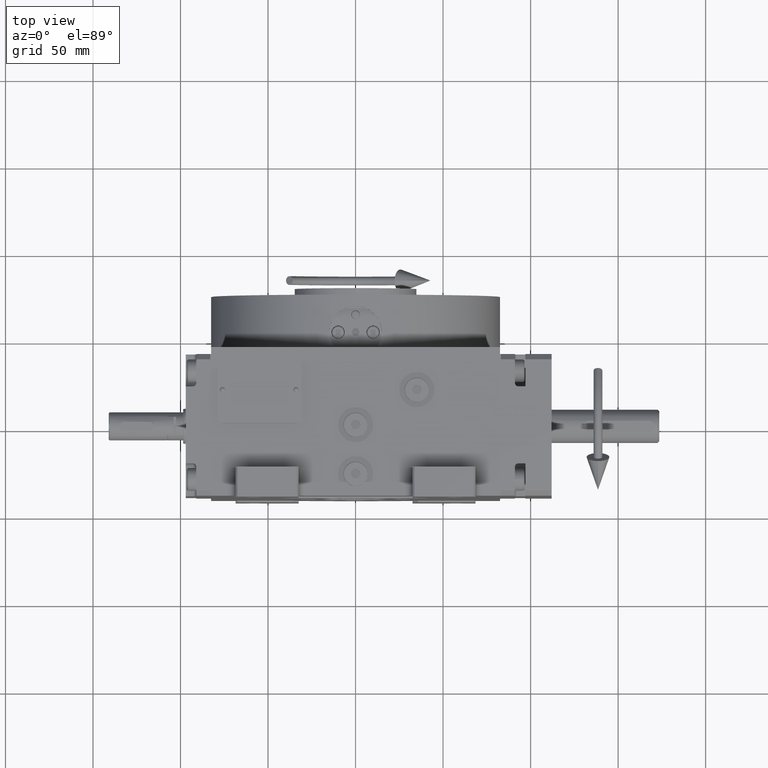
[diagram: clean part render]
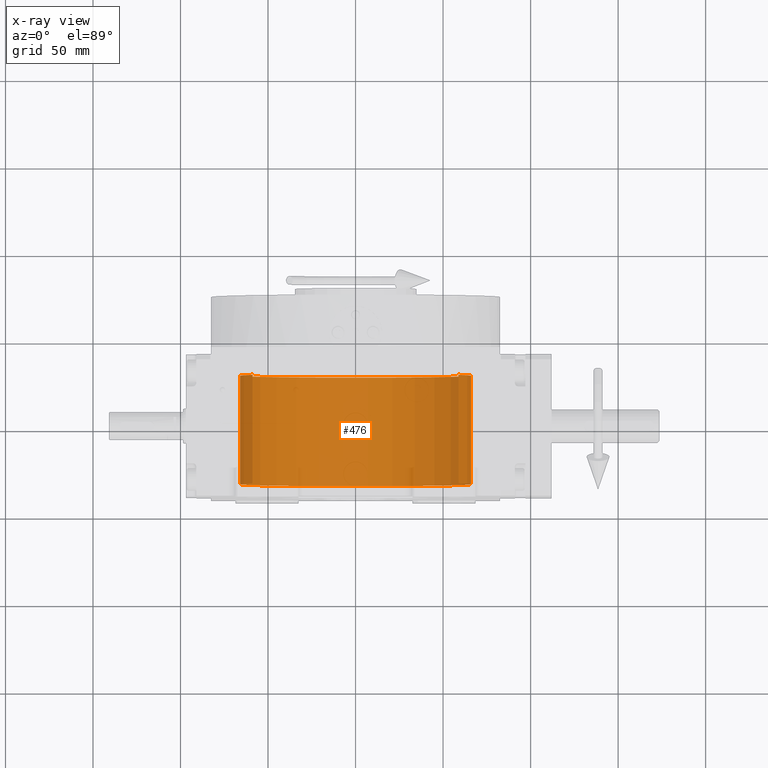
[diagram: x-ray — body ghosted, one internal face saturated and labeled with its STEP entity id]
A machine part, top view, then the same camera in x-ray: the body is ghosted and one INTERNAL B-rep face — a face not visible from any outside direction — is saturated and labeled: STEP entity #476.
In plain terms, the highlighted cylindrical surface (partial cylindrical patch) has radius 66 mm, axis along (0, 1, 0).
Its self-contained STEP definition (entity closure, byte-faithful):
#476 = ADVANCED_FACE ( 'NONE', ( #9109 ), #10185, .F. ) ;
#3968 = DIRECTION ( 'NONE',  ( 0.000000000000000000, 0.000000000000000000, 1.000000000000000000 ) ) ;
#4137 = ORIENTED_EDGE ( 'NONE', *, *, #58102, .T. ) ;
#4284 = DIRECTION ( 'NONE',  ( -0.000000000000000000, 1.000000000000000000, -0.000000000000000000 ) ) ;
#6397 = CIRCLE ( 'NONE', #19460, 66.00000000000000000 ) ;
#7104 = CARTESIAN_POINT ( 'NONE',  ( 58.78775382679628336, -31.99999999999998579, 30.00000000000000000 ) ) ;
#9109 = FACE_OUTER_BOUND ( 'NONE', #14542, .T. ) ;
#9178 = ORIENTED_EDGE ( 'NONE', *, *, #50015, .F. ) ;
#10185 = CYLINDRICAL_SURFACE ( 'NONE', #14543, 66.00000000000000000 ) ;
#11882 = EDGE_CURVE ( 'NONE', #61131, #39716, #14030, .T. ) ;
#14013 = CARTESIAN_POINT ( 'NONE',  ( 58.78775382679628336, 30.00000000000001421, 30.00000000000000000 ) ) ;
#14030 = CIRCLE ( 'NONE', #37607, 66.00000000000000000 ) ;
#14230 = VERTEX_POINT ( 'NONE', #7104 ) ;
#14542 = EDGE_LOOP ( 'NONE', ( #32088, #9178, #4137, #40596 ) ) ;
#14543 = AXIS2_PLACEMENT_3D ( 'NONE', #70748, #4284, #42742 ) ;
#16448 = DIRECTION ( 'NONE',  ( -0.000000000000000000, 1.000000000000000000, -0.000000000000000000 ) ) ;
#19460 = AXIS2_PLACEMENT_3D ( 'NONE', #67038, #16448, #65951 ) ;
#26255 = LINE ( 'NONE', #48760, #47644 ) ;
#31359 = CARTESIAN_POINT ( 'NONE',  ( 0.000000000000000000, 30.00000000000001421, 0.000000000000000000 ) ) ;
#32088 = ORIENTED_EDGE ( 'NONE', *, *, #37644, .T. ) ;
#34913 = DIRECTION ( 'NONE',  ( 0.000000000000000000, -1.000000000000000000, 0.000000000000000000 ) ) ;
#37280 = VERTEX_POINT ( 'NONE', #51997 ) ;
#37607 = AXIS2_PLACEMENT_3D ( 'NONE', #31359, #60118, #3968 ) ;
#37644 = EDGE_CURVE ( 'NONE', #39716, #37280, #60055, .T. ) ;
#37678 = DIRECTION ( 'NONE',  ( -0.000000000000000000, 1.000000000000000000, -0.000000000000000000 ) ) ;
#39716 = VERTEX_POINT ( 'NONE', #46661 ) ;
#40596 = ORIENTED_EDGE ( 'NONE', *, *, #11882, .T. ) ;
#42742 = DIRECTION ( 'NONE',  ( 0.000000000000000000, 0.000000000000000000, 1.000000000000000000 ) ) ;
#46661 = CARTESIAN_POINT ( 'NONE',  ( -58.78775382679628336, 30.00000000000001421, 30.00000000000000000 ) ) ;
#47644 = VECTOR ( 'NONE', #37678, 1000.000000000000000 ) ;
#48760 = CARTESIAN_POINT ( 'NONE',  ( 58.78775382679628336, 98.15000000000000568, 30.00000000000000000 ) ) ;
#50015 = EDGE_CURVE ( 'NONE', #14230, #37280, #6397, .T. ) ;
#51997 = CARTESIAN_POINT ( 'NONE',  ( -58.78775382679628336, -31.99999999999998579, 30.00000000000000000 ) ) ;
#58102 = EDGE_CURVE ( 'NONE', #14230, #61131, #26255, .T. ) ;
#60055 = LINE ( 'NONE', #67417, #63591 ) ;
#60118 = DIRECTION ( 'NONE',  ( -0.000000000000000000, 1.000000000000000000, -0.000000000000000000 ) ) ;
#61131 = VERTEX_POINT ( 'NONE', #14013 ) ;
#63591 = VECTOR ( 'NONE', #34913, 1000.000000000000000 ) ;
#65951 = DIRECTION ( 'NONE',  ( 0.000000000000000000, 0.000000000000000000, 1.000000000000000000 ) ) ;
#67038 = CARTESIAN_POINT ( 'NONE',  ( 0.000000000000000000, -31.99999999999998579, 0.000000000000000000 ) ) ;
#67417 = CARTESIAN_POINT ( 'NONE',  ( -58.78775382679628336, 98.15000000000000568, 30.00000000000000000 ) ) ;
#70748 = CARTESIAN_POINT ( 'NONE',  ( 0.000000000000000000, 98.15000000000000568, 0.000000000000000000 ) ) ;